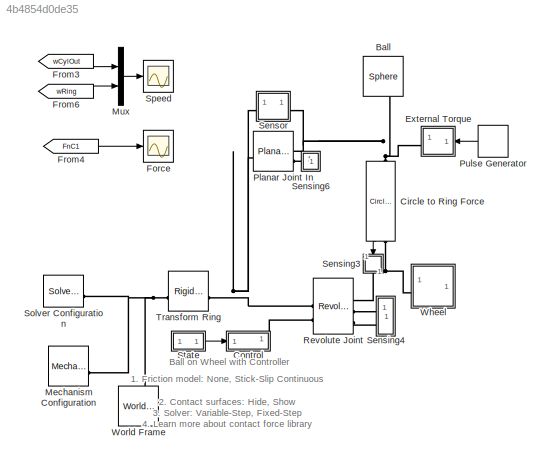
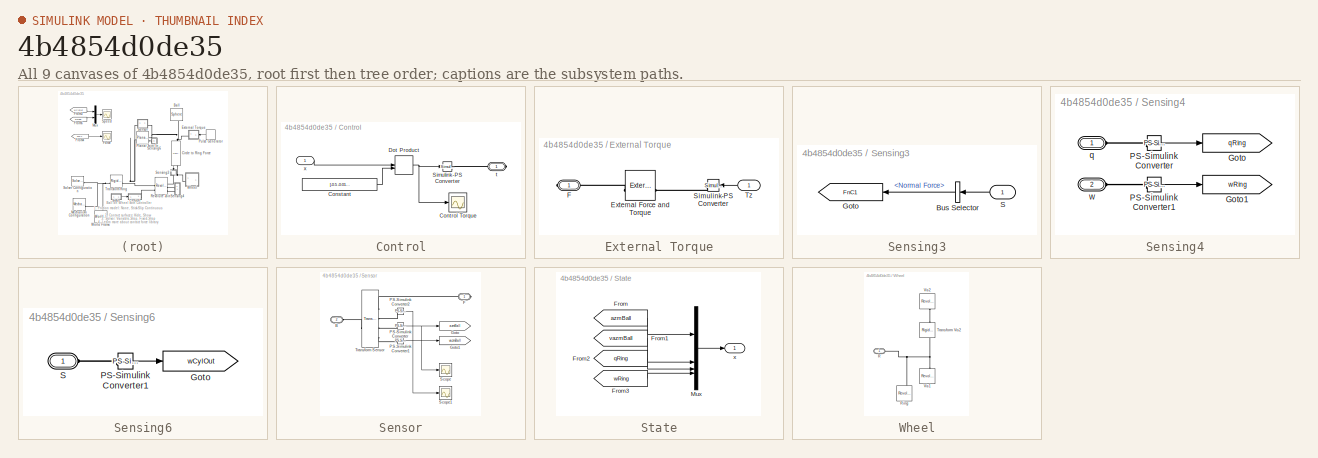
[diagram: thumbnail index - all 9 canvases of the model, root first then tree order]
MODEL slx_4b4854d0de35
KIND model
CONFIG AbsTol = 1e-5
CONFIG EnableMultiTasking = on
CONFIG FixedStep = 1e-3
CONFIG MaxStep = 0.01
CONFIG MinStep = auto
CONFIG PostLoadFcn = warning off Simulink:Engine:UsingDefaultMaxStepSize\n
CONFIG RelTol = 1e-4
CONFIG SampleTimeConstraint = Unconstrained
CONFIG SolverName = ode15s
CONFIG StartFcn = tic;
CONFIG StartTime = 0.0
CONFIG StopFcn = Elapsed_Sim_Time = toc;\ndisp(['Elapsed Sim Time = ' num2str(Elapsed_Sim_Time)]);\n
CONFIG StopTime = 30
WORKSPACE source: MATLAB code (in-file)
WORKSPACE r_ball = 11
WORKSPACE r_ball_contact = 7.8
WORKSPACE r_whl_contact = 124.6
WORKSPACE r_whl_outer = 125
WORKSPACE r_whl_inner = 110
WORKSPACE w_whl = 18.4
WORKSPACE w_whl_notch = 16.4
WORKSPACE Extr_Data_Wheel = flipud([...
WORKSPACE code: r_whl_outer     w_whl/2       ;
WORKSPACE code: r_whl_outer w_whl_notch/2 ;
WORKSPACE code: r_whl_outer-w_whl_notch/2 0             ;
WORKSPACE code: r_whl_outer -w_whl_notch/2 ;
WORKSPACE code: r_whl_outer -w_whl/2 ;
WORKSPACE code: r_whl_inner -w_whl/2 ;
WORKSPACE code: r_whl_inner w_whl/2 ]);
BLOCK [Reference] Ball  REF=Parts_Lib/Sphere
  NameLocation = right
  SourceBlock = Parts_Lib/Sphere
  SourceType = Sphere with Markings
  Tag = CustomStyle
BLOCK [Reference] Circle to Ring Force  REF=Contact_Forces_Lib/2D/Circle to Ring Force
  NameLocation = left
  SourceBlock = Contact_Forces_Lib/2D/Circle to Ring Force
  SourceProductName = Simscape Multibody Contact Forces Library
  SourceType = Circle to Ring Force
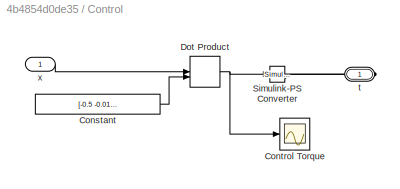
BLOCK [SubSystem] Control
BLOCK [Constant] Control/Constant
  Value = [-0.5 -0.01 0 0.00001]
BLOCK [Scope] Control/Control Torque
  Floating = off
  NumInputPorts = 1
  ScopeSpecificationString = Simulink.scopes.TimeScopeBlockCfg('CurrentConfiguration', extmgr.ConfigurationSet(extmgr.Configuration('Core','General UI',true),extmgr.Configuration('Core','Source UI',true),extmgr.Configuration('Sources','WiredSimulink',true,'DataLoggingVariableName','ScopeData2','DataLoggingSaveFormat','Array','DataLoggingDecimation','1','DataLoggingDecimateData',true),extmgr.Configuration('Visuals','Time Domai...<+1691ch>
BLOCK [DotProduct] Control/Dot Product
  NameLocation = top
  OutDataTypeStr = Inherit: Inherit via internal rule
BLOCK [Reference] Control/Simulink-PS Converter  REF=nesl_utility/Simulink-PS
Converter
  SourceBlock = nesl_utility/Simulink-PS\nConverter
  SourceType = Simulink-PS\nConverter
BLOCK [PMIOPort] Control/t
  Side = Right
BLOCK [Inport] Control/x
BLOCK [SubSystem] External Torque
BLOCK [Reference] External Torque/External Force and Torque  REF=sm_lib/Forces and
Torques/External Force
and Torque
  SourceBlock = sm_lib/Forces and\nTorques/External Force\nand Torque
  SourceType = External Force\nand Torque
BLOCK [PMIOPort] External Torque/F
  Side = Right
BLOCK [Reference] External Torque/Simulink-PS Converter  REF=nesl_utility/Simulink-PS
Converter
  SourceBlock = nesl_utility/Simulink-PS\nConverter
  SourceType = Simulink-PS\nConverter
BLOCK [Inport] External Torque/Tz
BLOCK [Scope] Force
  Floating = off
  NumInputPorts = 1
  ScopeSpecificationString = Simulink.scopes.TimeScopeBlockCfg('CurrentConfiguration', extmgr.ConfigurationSet(extmgr.Configuration('Core','General UI',true,'FigureColor',[0.501960784313725 0.501960784313725 0.501960784313725]),extmgr.Configuration('Core','Source UI',true),extmgr.Configuration('Sources','WiredSimulink',true,'DataLoggingVariableName','ScopeData1','DataLoggingSaveFormat','StructureWithTime','DataLoggingDecimati...<+2798ch>
BLOCK [From] From3
  GotoTag = wCylOut
  TagVisibility = global
BLOCK [From] From4
  GotoTag = FnC1
  TagVisibility = global
BLOCK [From] From6
  GotoTag = wRing
  TagVisibility = global
BLOCK [Reference] Mechanism Configuration  REF=sm_lib/Utilities/Mechanism
Configuration
  SourceBlock = sm_lib/Utilities/Mechanism\nConfiguration
  SourceType = Mechanism\nConfiguration
BLOCK [Mux] Mux
  DisplayOption = bar
  Inputs = 2
BLOCK [Reference] Planar Joint In  REF=sm_lib/Joints/Planar Joint
  SourceBlock = sm_lib/Joints/Planar Joint
  SourceType = Planar Joint
BLOCK [DiscretePulseGenerator] Pulse Generator
  Amplitude = 0.0001
  Period = 20
  PhaseDelay = 15
  PulseType = Time based
  PulseWidth = 0.1
BLOCK [Reference] Revolute Joint  REF=sm_lib/Joints/Revolute Joint
  SourceBlock = sm_lib/Joints/Revolute Joint
  SourceType = Revolute Joint
BLOCK [SubSystem] Sensing3
  NameLocation = left
BLOCK [BusSelector] Sensing3/Bus Selector
  NameLocation = top
  OutputSignals = Normal Force
BLOCK [Goto] Sensing3/Goto
  GotoTag = FnC1
  NameLocation = top
  TagVisibility = global
BLOCK [Inport] Sensing3/S
BLOCK [SubSystem] Sensing4
BLOCK [Goto] Sensing4/Goto
  GotoTag = qRing
  TagVisibility = global
BLOCK [Goto] Sensing4/Goto1
  GotoTag = wRing
  TagVisibility = global
BLOCK [Reference] Sensing4/PS-Simulink Converter  REF=nesl_utility/PS-Simulink
Converter
  SourceBlock = nesl_utility/PS-Simulink\nConverter
  SourceType = PS-Simulink\nConverter
BLOCK [Reference] Sensing4/PS-Simulink Converter1  REF=nesl_utility/PS-Simulink
Converter
  SourceBlock = nesl_utility/PS-Simulink\nConverter
  SourceType = PS-Simulink\nConverter
BLOCK [PMIOPort] Sensing4/q
  Side = Left
BLOCK [PMIOPort] Sensing4/w
  Port = 2
  Side = Left
BLOCK [SubSystem] Sensing6
BLOCK [Goto] Sensing6/Goto
  GotoTag = wCylOut
  TagVisibility = global
BLOCK [Reference] Sensing6/PS-Simulink Converter1  REF=nesl_utility/PS-Simulink
Converter
  SourceBlock = nesl_utility/PS-Simulink\nConverter
  SourceType = PS-Simulink\nConverter
BLOCK [PMIOPort] Sensing6/S
  Side = Left
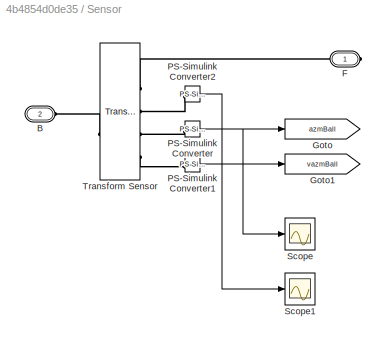
BLOCK [SubSystem] Sensor
  NameLocation = top
BLOCK [PMIOPort] Sensor/B
  Port = 2
  Side = Left
BLOCK [PMIOPort] Sensor/F
  Side = Right
BLOCK [Goto] Sensor/Goto
  GotoTag = azmBall
  TagVisibility = global
BLOCK [Goto] Sensor/Goto1
  GotoTag = vazmBall
  TagVisibility = global
BLOCK [Reference] Sensor/PS-Simulink Converter  REF=nesl_utility/PS-Simulink
Converter
  SourceBlock = nesl_utility/PS-Simulink\nConverter
  SourceType = PS-Simulink\nConverter
BLOCK [Reference] Sensor/PS-Simulink Converter1  REF=nesl_utility/PS-Simulink
Converter
  SourceBlock = nesl_utility/PS-Simulink\nConverter
  SourceType = PS-Simulink\nConverter
BLOCK [Reference] Sensor/PS-Simulink Converter2  REF=nesl_utility/PS-Simulink
Converter
  SourceBlock = nesl_utility/PS-Simulink\nConverter
  SourceType = PS-Simulink\nConverter
BLOCK [Scope] Sensor/Scope
  Floating = off
  NumInputPorts = 1
  ScopeSpecificationString = Simulink.scopes.TimeScopeBlockCfg('CurrentConfiguration', extmgr.ConfigurationSet(extmgr.Configuration('Core','General UI',true),extmgr.Configuration('Core','Source UI',true),extmgr.Configuration('Sources','WiredSimulink',true,'DataLoggingLimitDataPoints',true,'DataLoggingSaveFormat','Array','DataLoggingDecimation','1','DataLoggingDecimateData',true),extmgr.Configuration('Visuals','Time Domain',tr...<+1620ch>
BLOCK [Scope] Sensor/Scope1
  Floating = off
  NumInputPorts = 1
  ScopeSpecificationString = Simulink.scopes.TimeScopeBlockCfg('CurrentConfiguration', extmgr.ConfigurationSet(extmgr.Configuration('Core','General UI',true),extmgr.Configuration('Core','Source UI',true),extmgr.Configuration('Sources','WiredSimulink',true,'DataLoggingVariableName','ScopeData4','DataLoggingLimitDataPoints',true,'DataLoggingSaveFormat','Array','DataLoggingDecimation','1','DataLoggingDecimateData',true),extmgr.C...<+1679ch>
BLOCK [Reference] Sensor/Transform Sensor  REF=sm_lib/Frames and
Transforms/Transform
Sensor
  SourceBlock = sm_lib/Frames and\nTransforms/Transform\nSensor
  SourceType = Transform\nSensor
BLOCK [Reference] Solver Configuration  REF=nesl_utility/Solver
Configuration
  SourceBlock = nesl_utility/Solver\nConfiguration
  SourceType = Solver\nConfiguration
BLOCK [Scope] Speed
  Floating = off
  NumInputPorts = 1
  ScopeSpecificationString = Simulink.scopes.TimeScopeBlockCfg('CurrentConfiguration', extmgr.ConfigurationSet(extmgr.Configuration('Core','General UI',true,'FigureColor',[0.501960784313725 0.501960784313725 0.501960784313725]),extmgr.Configuration('Core','Source UI',true),extmgr.Configuration('Sources','WiredSimulink',true,'DataLoggingVariableName','ScopeData7','DataLoggingSaveFormat','StructureWithTime','DataLoggingDecimati...<+2764ch>
BLOCK [SubSystem] State
BLOCK [From] State/From
  GotoTag = azmBall
  TagVisibility = global
BLOCK [From] State/From1
  GotoTag = vazmBall
  TagVisibility = global
BLOCK [From] State/From2
  GotoTag = qRing
  TagVisibility = global
BLOCK [From] State/From3
  GotoTag = wRing
  TagVisibility = global
BLOCK [Mux] State/Mux
  DisplayOption = bar
BLOCK [Outport] State/x
  VectorParamsAs1DForOutWhenUnconnected = off
BLOCK [Reference] Transform Ring  REF=sm_lib/Frames and
Transforms/Rigid
Transform
  NameLocation = top
  SourceBlock = sm_lib/Frames and\nTransforms/Rigid\nTransform
  SourceType = Rigid\nTransform
BLOCK [SubSystem] Wheel
BLOCK [PMIOPort] Wheel/R
  Side = Left
BLOCK [Reference] Wheel/Ring  REF=sm_lib/Body Elements/Revolved Solid
  NameLocation = left
  SourceBlock = sm_lib/Body Elements/Revolved Solid
  SourceType = Revolved Solid
BLOCK [Reference] Wheel/Transform Vis2  REF=sm_lib/Frames and
Transforms/Rigid
Transform
  NameLocation = left
  SourceBlock = sm_lib/Frames and\nTransforms/Rigid\nTransform
  SourceType = Rigid\nTransform
BLOCK [Reference] Wheel/Vis1  REF=sm_lib/Body Elements/Revolved Solid
  NameLocation = right
  SourceBlock = sm_lib/Body Elements/Revolved Solid
  SourceType = Revolved Solid
BLOCK [Reference] Wheel/Vis2  REF=sm_lib/Body Elements/Revolved Solid
  NameLocation = left
  SourceBlock = sm_lib/Body Elements/Revolved Solid
  SourceType = Revolved Solid
BLOCK [Reference] World Frame  REF=sm_lib/Frames and
Transforms/World Frame
  NameLocation = right
  SourceBlock = sm_lib/Frames and\nTransforms/World Frame
  SourceType = World Frame
ANNOTATION (root): 1. Friction model: None , Stick-Slip Continuous 2. Contact surfaces: Hide , Show 3. Solver: Variable-Step , Fixed-Step 4. Learn more about contact force library
ANNOTATION (root): Ball on Wheel with Controller
LINE Circle to Ring Force:1 -> Sensing3:1
LINE Control/Constant:1 -> Control/Dot Product:2
NET Control/Dot Product:1 -> Control/Control Torque:1, Control/Simulink-PS Converter:1
LINE Control/x:1 -> Control/Dot Product:1
LINE External Torque/Tz:1 -> External Torque/Simulink-PS Converter:1
LINE From3:1 -> Mux:1
LINE From4:1 -> Force:1
LINE From6:1 -> Mux:2
LINE Mux:1 -> Speed:1
LINE Pulse Generator:1 -> External Torque:1
LINE Sensing3/Bus Selector:1 -> Sensing3/Goto:1
LINE Sensing3/S:1 -> Sensing3/Bus Selector:1
LINE Sensing4/PS-Simulink Converter1:1 -> Sensing4/Goto1:1
LINE Sensing4/PS-Simulink Converter:1 -> Sensing4/Goto:1
LINE Sensing6/PS-Simulink Converter1:1 -> Sensing6/Goto:1
LINE Sensor/PS-Simulink Converter1:1 -> Sensor/Goto1:1
LINE Sensor/PS-Simulink Converter2:1 -> Sensor/Scope1:1
NET Sensor/PS-Simulink Converter:1 -> Sensor/Goto:1, Sensor/Scope:1
LINE State/From1:1 -> State/Mux:2
LINE State/From2:1 -> State/Mux:3
LINE State/From3:1 -> State/Mux:4
LINE State/From:1 -> State/Mux:1
LINE State/Mux:1 -> State/x:1
LINE State:1 -> Control:1
PNET net1: Ball:LConn1 -- Circle to Ring Force:LConn1 -- External Torque:RConn1 -- Planar Joint In:RConn1 -- Sensor:RConn1
PNET net2: Circle to Ring Force:RConn1 -- Revolute Joint:RConn1 -- Wheel:LConn1
PLINE Control/Simulink-PS Converter:RConn1 -- Control/t:RConn1
PLINE Control:RConn1 -- Revolute Joint:LConn2
PLINE External Torque/External Force and Torque:LConn1 -- External Torque/Simulink-PS Converter:RConn1
PLINE External Torque/External Force and Torque:RConn1 -- External Torque/F:RConn1
PNET net3: Mechanism Configuration:RConn1 -- Solver Configuration:RConn1 -- Transform Ring:LConn1 -- World Frame:RConn1
PNET net4: Planar Joint In:LConn1 -- Revolute Joint:LConn1 -- Sensor:LConn1 -- Transform Ring:RConn1
PLINE Planar Joint In:RConn2 -- Sensing6:LConn1
PLINE Revolute Joint:RConn2 -- Sensing4:LConn1
PLINE Revolute Joint:RConn3 -- Sensing4:LConn2
PLINE Sensing4/PS-Simulink Converter1:LConn1 -- Sensing4/w:RConn1
PLINE Sensing4/PS-Simulink Converter:LConn1 -- Sensing4/q:RConn1
PLINE Sensing6/PS-Simulink Converter1:LConn1 -- Sensing6/S:RConn1
PLINE Sensor/B:RConn1 -- Sensor/Transform Sensor:LConn1
PLINE Sensor/F:RConn1 -- Sensor/Transform Sensor:RConn1
PLINE Sensor/PS-Simulink Converter1:LConn1 -- Sensor/Transform Sensor:RConn4
PLINE Sensor/PS-Simulink Converter2:LConn1 -- Sensor/Transform Sensor:RConn2
PLINE Sensor/PS-Simulink Converter:LConn1 -- Sensor/Transform Sensor:RConn3
note: NET lines group one-source signal fan-out (src -> all destinations, sorted); 1:1 wires keep LINE; PNET lines group multi-terminal physical nets as a canonical sorted terminal list (undirected conserving connections); 2-terminal nets keep the pairwise PLINE form
